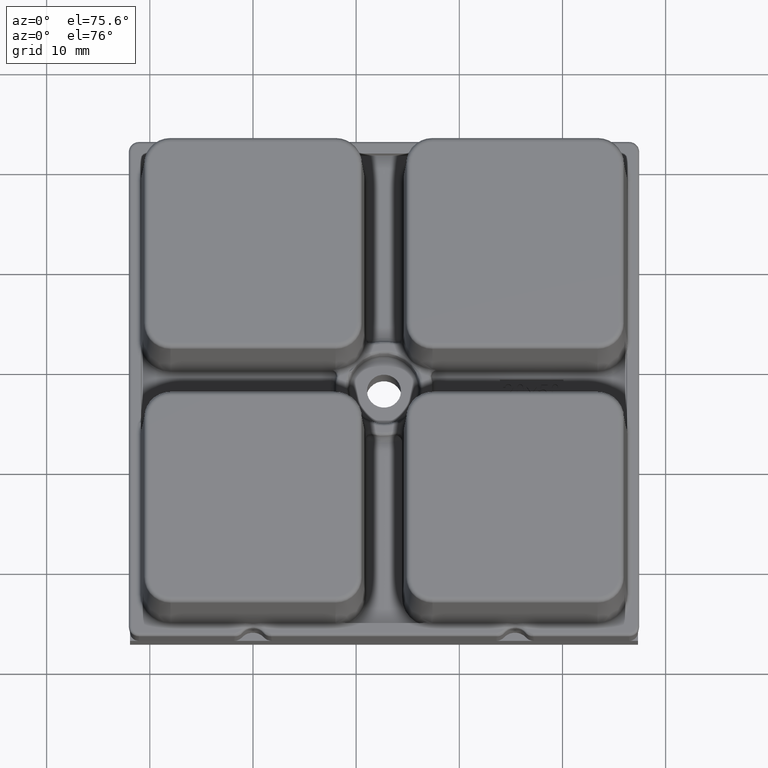
[diagram: clean part render]
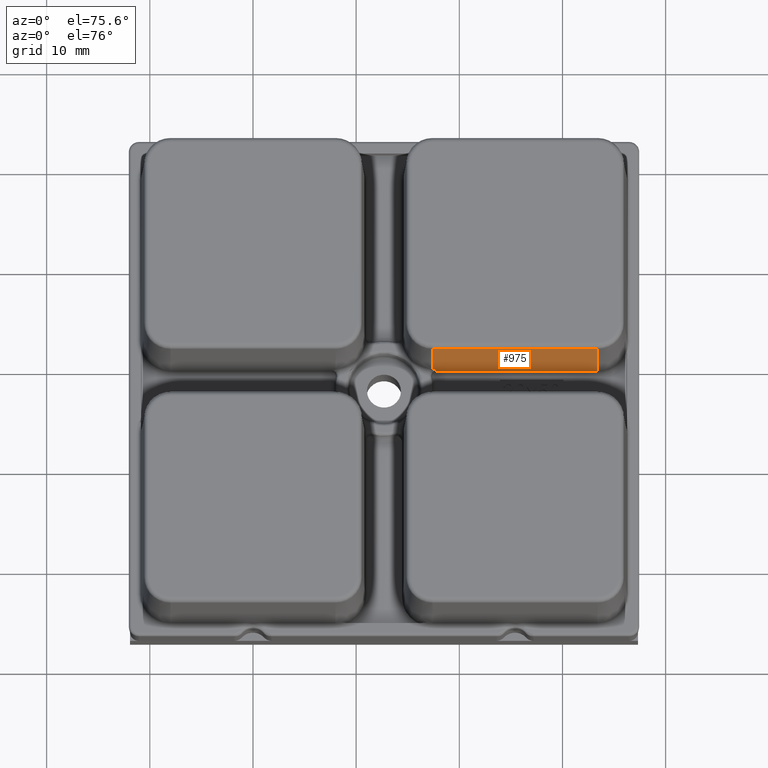
[diagram: same view with one face highlighted and labeled with its STEP entity id]
A machine part, auxiliary view. The second image highlights one B-rep face of the part: STEP entity #975.
In plain terms, the highlighted planar face has unit normal (0, -0.9986, 0.0523).
Its self-contained STEP definition (entity closure, byte-faithful):
#702=B_SPLINE_CURVE_WITH_KNOTS('',3,(#13233,#13234,#13235,#13236,#13237,
#13238,#13239,#13240),.UNSPECIFIED.,.F.,.F.,(4,2,2,4),(0.,0.382308004898729,
0.7652849254157,1.),.UNSPECIFIED.);
#703=B_SPLINE_CURVE_WITH_KNOTS('',3,(#13242,#13243,#13244,#13245),
 .UNSPECIFIED.,.F.,.F.,(4,4),(0.,1.),.UNSPECIFIED.);
#975=ADVANCED_FACE('',(#1579),#1328,.T.);
#1328=PLANE('',#8169);
#1579=FACE_OUTER_BOUND('',#2069,.T.);
#2069=EDGE_LOOP('',(#3900,#3901,#3902,#3903,#3904,#3905));
#3900=ORIENTED_EDGE('',*,*,#6403,.T.);
#3901=ORIENTED_EDGE('',*,*,#6435,.T.);
#3902=ORIENTED_EDGE('',*,*,#6436,.T.);
#3903=ORIENTED_EDGE('',*,*,#6437,.T.);
#3904=ORIENTED_EDGE('',*,*,#6421,.F.);
#3905=ORIENTED_EDGE('',*,*,#6438,.T.);
#5563=VERTEX_POINT('',#13135);
#5564=VERTEX_POINT('',#13137);
#5579=VERTEX_POINT('',#13184);
#5580=VERTEX_POINT('',#13186);
#5587=VERTEX_POINT('',#13241);
#5588=VERTEX_POINT('',#13246);
#6403=EDGE_CURVE('',#5564,#5563,#7088,.T.);
#6421=EDGE_CURVE('',#5579,#5580,#7095,.T.);
#6435=EDGE_CURVE('',#5563,#5587,#702,.T.);
#6436=EDGE_CURVE('',#5587,#5588,#703,.T.);
#6437=EDGE_CURVE('',#5588,#5580,#7103,.T.);
#6438=EDGE_CURVE('',#5579,#5564,#7104,.T.);
#7088=LINE('',#13136,#7502);
#7095=LINE('',#13185,#7509);
#7103=LINE('',#13247,#7517);
#7104=LINE('',#13248,#7518);
#7502=VECTOR('',#9721,1.);
#7509=VECTOR('',#9752,1.);
#7517=VECTOR('',#9770,1.);
#7518=VECTOR('',#9771,1.);
#8169=AXIS2_PLACEMENT_3D('',#13249,#9772,#9773);
#9721=DIRECTION('',(0.,-0.0523359562429438,-0.998629534754574));
#9752=DIRECTION('',(-3.6866468221016E-16,-0.0523359562429438,-0.998629534754574));
#9770=DIRECTION('',(1.,0.,0.));
#9771=DIRECTION('',(-1.,0.,0.));
#9772=DIRECTION('',(0.,-0.998629534754574,0.0523359562429438));
#9773=DIRECTION('',(0.,0.0523359562429438,0.998629534754574));
#13135=CARTESIAN_POINT('',(17.4,-10.8870859888878,2.324845101931));
#13136=CARTESIAN_POINT('',(17.4,-10.5957101335843,7.88462762448061));
#13137=CARTESIAN_POINT('',(17.4,-10.5457896089725,8.83716797812147));
#13184=CARTESIAN_POINT('',(33.4,-10.5457896089725,8.83716797812147));
#13185=CARTESIAN_POINT('',(33.4,-10.5957101335843,7.88462762448061));
#13186=CARTESIAN_POINT('',(33.4,-10.9258684310538,1.58483202187853));
#13233=CARTESIAN_POINT('',(17.4,-10.8870859888878,2.324845101931));
#13234=CARTESIAN_POINT('',(17.4776519729663,-10.8896824070327,2.27530249241039));
#13235=CARTESIAN_POINT('',(17.54805129811,-10.8929987809672,2.21202230805851));
#13236=CARTESIAN_POINT('',(17.6622419136048,-10.9005757562923,2.06744500620098));
#13237=CARTESIAN_POINT('',(17.7075598658203,-10.9049457419906,1.98406071176744));
#13238=CARTESIAN_POINT('',(17.754721915588,-10.9123595824629,1.84259620833386));
#13239=CARTESIAN_POINT('',(17.7669221521155,-10.9153132448971,1.78623697169785));
#13240=CARTESIAN_POINT('',(17.7727879836049,-10.9182837364644,1.72955661607298));
#13241=CARTESIAN_POINT('',(17.7727879836049,-10.9182837364644,1.72955661607298));
#13242=CARTESIAN_POINT('',(17.7727879836049,-10.9182837364644,1.72955661607298));
#13243=CARTESIAN_POINT('',(17.777780441875,-10.9208119466965,1.68131549105882));
#13244=CARTESIAN_POINT('',(17.7827689494941,-10.9233401783053,1.63307395815274));
#13245=CARTESIAN_POINT('',(17.787753540926,-10.9258684310538,1.58483202187853));
#13246=CARTESIAN_POINT('',(17.787753540926,-10.9258684310538,1.58483202187853));
#13247=CARTESIAN_POINT('',(33.4,-10.9258684310538,1.58483202187853));
#13248=CARTESIAN_POINT('',(17.4,-10.5457896089725,8.83716797812147));
#13249=CARTESIAN_POINT('',(25.4,-10.5957101335843,7.88462762448061));